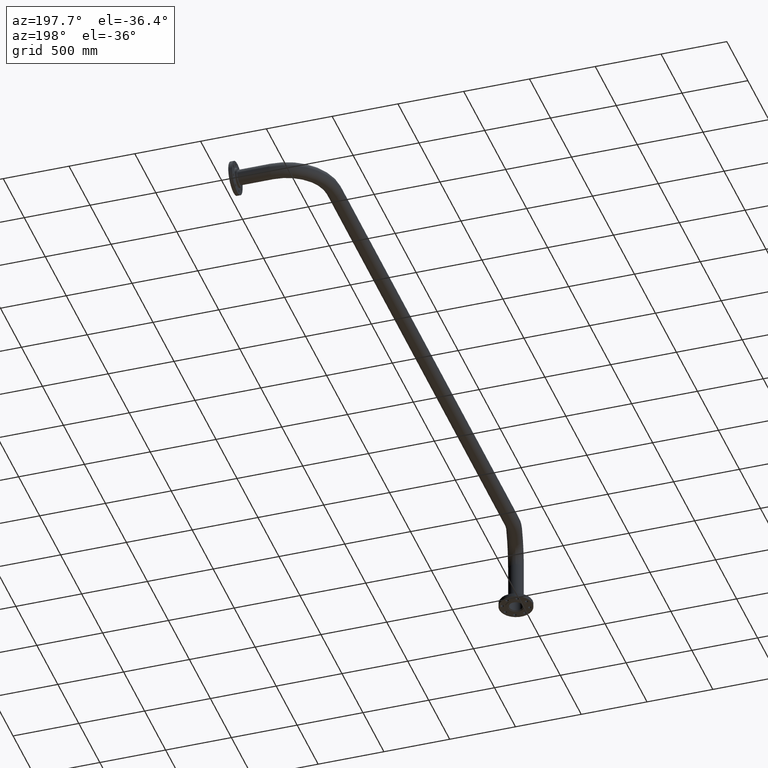
[diagram: clean part render]
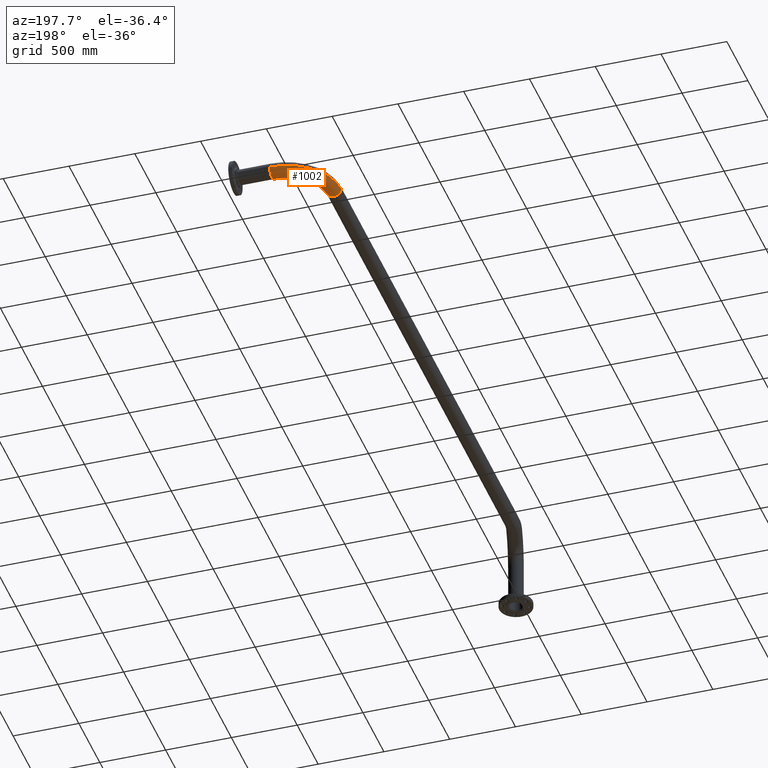
[diagram: same view with one face highlighted and labeled with its STEP entity id]
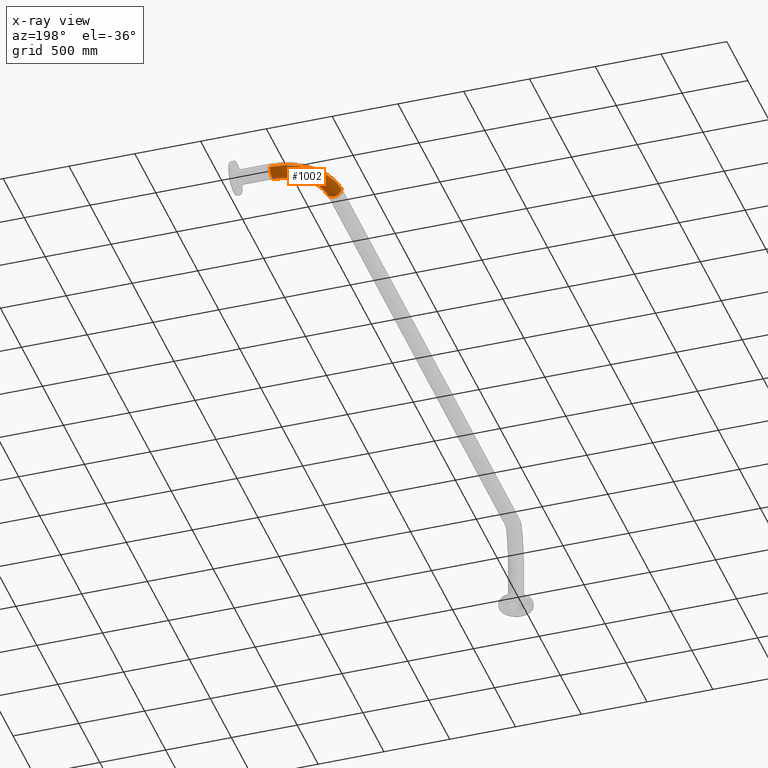
[diagram: x-ray of the same camera — body ghosted, the highlighted face saturated]
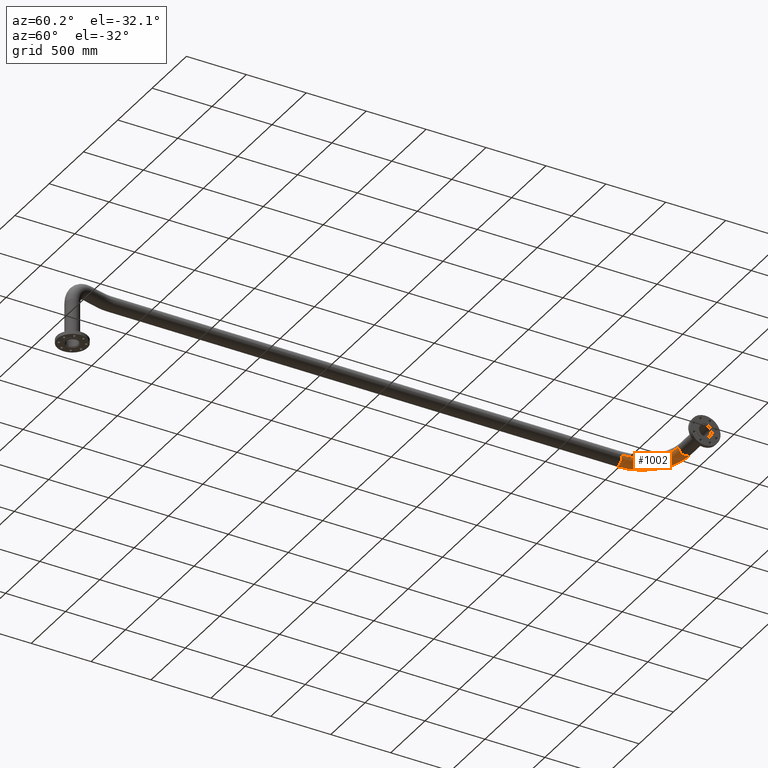
[diagram: same view with one face highlighted and labeled with its STEP entity id]
A machine part, auxiliary view. The second image highlights one B-rep face of the part: STEP entity #1002.
The next image is the same camera in x-ray: the body ghosted, the highlighted face saturated — about 0% of this face is hidden behind the body in this view.
A second angle (auxiliary view) of the same face is appended — the face is thin or edge-on in the first view.
In plain terms, the highlighted toroidal blend (fillet) surface has major radius 356 mm and minor (blend) radius 57.15 mm.
Its self-contained STEP definition (entity closure, byte-faithful):
#4 = VERTEX_POINT ( 'NONE', #182 ) ;
#44 = CARTESIAN_POINT ( 'NONE',  ( -4715.999999999966349, -356.0000000000005684, 7.888609052210118054E-28 ) ) ;
#118 = CIRCLE ( 'NONE', #1088, 57.15000000000003411 ) ;
#182 = CARTESIAN_POINT ( 'NONE',  ( -4715.999999999966349, 57.15000000000000568, 4.332677809523325907E-27 ) ) ;
#254 = CIRCLE ( 'NONE', #942, 298.8500000000007049 ) ;
#282 = VERTEX_POINT ( 'NONE', #1973 ) ;
#292 = ORIENTED_EDGE ( 'NONE', *, *, #2302, .F. ) ;
#362 = DIRECTION ( 'NONE',  ( 2.650142136768027125E-15, -1.000000000000000000, 2.540120025324014445E-30 ) ) ;
#373 = CARTESIAN_POINT ( 'NONE',  ( -4715.999999999966349, 3.165684441250805020E-15, 7.888609052210118054E-28 ) ) ;
#423 = VERTEX_POINT ( 'NONE', #2518 ) ;
#445 = CIRCLE ( 'NONE', #2160, 57.15000000000000568 ) ;
#500 = ORIENTED_EDGE ( 'NONE', *, *, #559, .F. ) ;
#559 = EDGE_CURVE ( 'NONE', #2041, #2776, #2299, .T. ) ;
#612 = DIRECTION ( 'NONE',  ( -1.000000000000000000, 6.712647246081559806E-19, -1.922848456476224333E-30 ) ) ;
#653 = DIRECTION ( 'NONE',  ( -1.873544649899918802E-30, 2.540120025324032662E-30, -1.000000000000000000 ) ) ;
#687 = DIRECTION ( 'NONE',  ( 0.000000000000000000, 1.000000000000000000, 2.541699080027853651E-30 ) ) ;
#923 = CARTESIAN_POINT ( 'NONE',  ( -5071.999999999965439, -356.0000000000015348, 57.15000000000000568 ) ) ;
#942 = AXIS2_PLACEMENT_3D ( 'NONE', #2604, #653, #687 ) ;
#1002 = ADVANCED_FACE ( 'NONE', ( #1433 ), #2396, .T. ) ;
#1088 = AXIS2_PLACEMENT_3D ( 'NONE', #2537, #362, #1908 ) ;
#1189 = DIRECTION ( 'NONE',  ( -1.000000000000000000, -9.643294153508151391E-60, 1.873544649899918452E-30 ) ) ;
#1232 = ORIENTED_EDGE ( 'NONE', *, *, #1710, .T. ) ;
#1433 = FACE_OUTER_BOUND ( 'NONE', #1927, .T. ) ;
#1543 = EDGE_CURVE ( 'NONE', #282, #4, #445, .T. ) ;
#1617 = AXIS2_PLACEMENT_3D ( 'NONE', #44, #1945, #1928 ) ;
#1618 = AXIS2_PLACEMENT_3D ( 'NONE', #2123, #1881, #2323 ) ;
#1657 = EDGE_CURVE ( 'NONE', #423, #4, #1662, .T. ) ;
#1662 = CIRCLE ( 'NONE', #1617, 413.1500000000007731 ) ;
#1710 = EDGE_CURVE ( 'NONE', #2041, #282, #254, .T. ) ;
#1773 = CARTESIAN_POINT ( 'NONE',  ( -5014.849999999967622, -356.0000000000013642, 6.998856457127943756E-15 ) ) ;
#1811 = DIRECTION ( 'NONE',  ( -1.873544649899918802E-30, 2.540120025324032662E-30, -1.000000000000000000 ) ) ;
#1881 = DIRECTION ( 'NONE',  ( 2.650142136768027125E-15, -1.000000000000000000, 2.540120025324014445E-30 ) ) ;
#1893 = AXIS2_PLACEMENT_3D ( 'NONE', #2288, #1811, #1189 ) ;
#1908 = DIRECTION ( 'NONE',  ( 1.000000000000000000, 2.913971193241878794E-15, 1.922848456476216276E-30 ) ) ;
#1927 = EDGE_LOOP ( 'NONE', ( #2005, #292, #500, #1232, #2177 ) ) ;
#1928 = DIRECTION ( 'NONE',  ( 0.000000000000000000, 1.000000000000000000, 2.540120025324033012E-30 ) ) ;
#1945 = DIRECTION ( 'NONE',  ( -1.873544649899918802E-30, 2.540120025324032662E-30, -1.000000000000000000 ) ) ;
#1973 = CARTESIAN_POINT ( 'NONE',  ( -4715.999999999966349, -57.15000000000000568, 6.998856457131718456E-15 ) ) ;
#2005 = ORIENTED_EDGE ( 'NONE', *, *, #1657, .F. ) ;
#2041 = VERTEX_POINT ( 'NONE', #1773 ) ;
#2107 = DIRECTION ( 'NONE',  ( 0.000000000000000000, -1.000000000000000000, 2.540120025324013745E-30 ) ) ;
#2123 = CARTESIAN_POINT ( 'NONE',  ( -5071.999999999967258, -356.0000000000015348, 7.888609052210118054E-28 ) ) ;
#2160 = AXIS2_PLACEMENT_3D ( 'NONE', #373, #612, #2107 ) ;
#2177 = ORIENTED_EDGE ( 'NONE', *, *, #1543, .T. ) ;
#2288 = CARTESIAN_POINT ( 'NONE',  ( -4715.999999999966349, -356.0000000000005684, 7.888609052210118054E-28 ) ) ;
#2299 = CIRCLE ( 'NONE', #1618, 57.15000000000003411 ) ;
#2302 = EDGE_CURVE ( 'NONE', #2776, #423, #118, .T. ) ;
#2323 = DIRECTION ( 'NONE',  ( 1.000000000000000000, 2.913971193241878794E-15, 1.922848456476216276E-30 ) ) ;
#2396 = TOROIDAL_SURFACE ( 'NONE', #1893, 356.0000000000007390, 57.15000000000000568 ) ;
#2518 = CARTESIAN_POINT ( 'NONE',  ( -5129.149999999965075, -356.0000000000017053, 1.562915877327157858E-27 ) ) ;
#2537 = CARTESIAN_POINT ( 'NONE',  ( -5071.999999999967258, -356.0000000000015348, 7.888609052210118054E-28 ) ) ;
#2604 = CARTESIAN_POINT ( 'NONE',  ( -4715.999999999966349, -356.0000000000005684, 6.998856457127854615E-15 ) ) ;
#2776 = VERTEX_POINT ( 'NONE', #923 ) ;